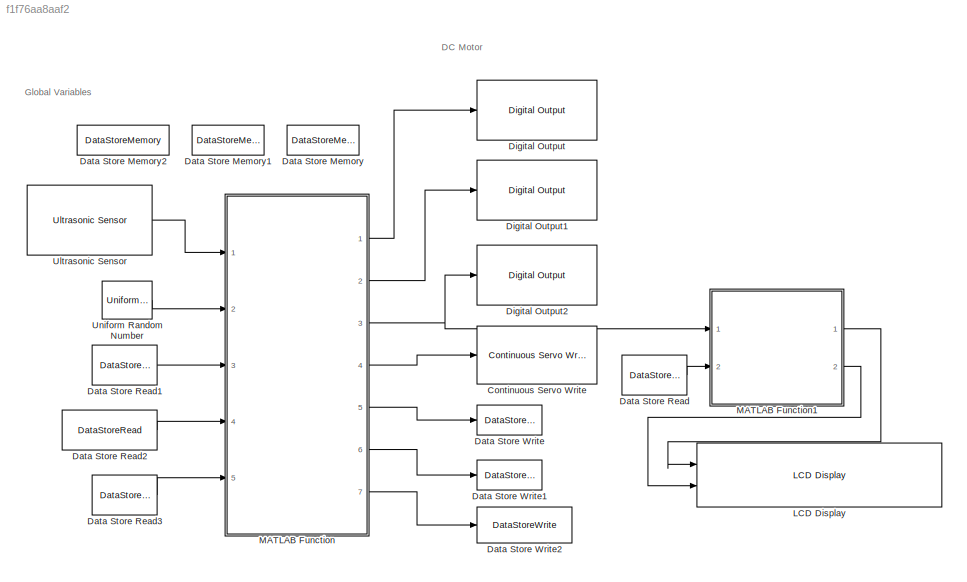
MODEL slx_f1f76aa8aaf2
KIND model
CONFIG AbsTol = auto
CONFIG EnableMultiTasking = on
CONFIG FixedStep = auto
CONFIG MaxStep = auto
CONFIG MinStep = auto
CONFIG RelTol = 1e-3
CONFIG SampleTimeConstraint = Unconstrained
CONFIG Solver = FixedStepAuto
CONFIG SolverName = FixedStepAuto
CONFIG StartTime = 0.0
CONFIG StopTime = inf
BLOCK [Reference] Continuous Servo Write  REF=arduinolib/Continuous Servo Write
  Ports = [1]
  SourceBlock = arduinolib/Continuous Servo Write
  SourceProductBaseCode = ARDUINO
  SourceProductName = Simulink Support Package for Arduino Hardware
  SourceType = Arduino Continuous Servo Write
BLOCK [DataStoreMemory] Data Store Memory
  DataStoreName = Dir_Signal
  ReadBeforeWriteMsg = warning
  ShowAdditionalParam = off
  WriteAfterReadMsg = warning
  WriteAfterWriteMsg = warning
BLOCK [DataStoreMemory] Data Store Memory1
  DataStoreName = Lock
  ReadBeforeWriteMsg = warning
  ShowAdditionalParam = off
  WriteAfterReadMsg = warning
  WriteAfterWriteMsg = warning
BLOCK [DataStoreMemory] Data Store Memory2
  DataStoreName = Lock_random_val
  ReadBeforeWriteMsg = warning
  ShowAdditionalParam = off
  WriteAfterReadMsg = warning
  WriteAfterWriteMsg = warning
BLOCK [DataStoreRead] Data Store Read
  DataStoreName = Dir_Signal
  Ports = [0, 1]
BLOCK [DataStoreRead] Data Store Read1
  DataStoreName = Lock
  Ports = [0, 1]
BLOCK [DataStoreRead] Data Store Read2
  DataStoreName = Lock_random_val
  Ports = [0, 1]
BLOCK [DataStoreRead] Data Store Read3
  DataStoreName = Dir_Signal
  Ports = [0, 1]
BLOCK [DataStoreWrite] Data Store Write
  DataStoreName = Dir_Signal
  Ports = [1]
BLOCK [DataStoreWrite] Data Store Write1
  DataStoreName = Lock
  Ports = [1]
BLOCK [DataStoreWrite] Data Store Write2
  DataStoreName = Lock_random_val
  Ports = [1]
BLOCK [Reference] Digital Output  REF=arduinolib/Digital Output
  Ports = [1]
  SourceBlock = arduinolib/Digital Output
  SourceProductBaseCode = ARDUINO
  SourceProductName = Simulink Support Package for Arduino Hardware
  SourceType = Arduino Digital Output
BLOCK [Reference] Digital Output1  REF=arduinolib/Digital Output
  Ports = [1]
  SourceBlock = arduinolib/Digital Output
  SourceProductBaseCode = ARDUINO
  SourceProductName = Simulink Support Package for Arduino Hardware
  SourceType = Arduino Digital Output
BLOCK [Reference] Digital Output2  REF=arduinolib/Digital Output
  Ports = [1]
  SourceBlock = arduinolib/Digital Output
  SourceProductBaseCode = ARDUINO
  SourceProductName = Simulink Support Package for Arduino Hardware
  SourceType = Arduino Digital Output
BLOCK [Reference] LCD Display  REF=LCDlib/LCD Display
  Ports = [2]
  SourceBlock = LCDlib/LCD Display
  SourceProductName = LCD Library
  SourceType = LiquidCrystalDisplay.block.LCD
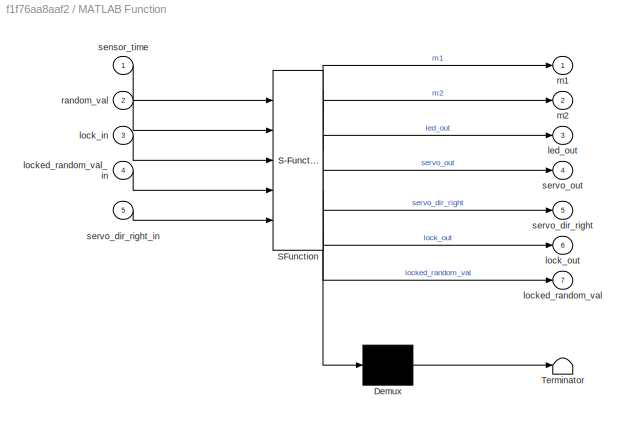
BLOCK [SubSystem] MATLAB Function
  ErrorFcn = Stateflow.Translate.translate
  PermitHierarchicalResolution = ExplicitOnly
  Ports = [5, 7]
  RequestExecContextInheritance = off
  SFBlockType = MATLAB Function
  TreatAsAtomicUnit = on
BLOCK [Demux] MATLAB Function/ Demux 
  Outputs = 1
  Ports = [1, 1]
BLOCK [S-Function] MATLAB Function/ SFunction 
  EnableBusSupport = on
  FunctionName = sf_sfun
  PortCounts = [5 8]
  Ports = [5, 8]
  SFcnIsStateOwnerBlock = off
  SFunctionDeploymentMode = off
  Tag = Stateflow S-Function Obstacle_Avoiding_Robot 2
BLOCK [Terminator] MATLAB Function/ Terminator 
BLOCK [Outport] MATLAB Function/led_out
  IconDisplay = Port number
  Port = 3
BLOCK [Inport] MATLAB Function/lock_in
  IconDisplay = Port number
  Port = 3
BLOCK [Outport] MATLAB Function/lock_out
  IconDisplay = Port number
  Port = 6
BLOCK [Outport] MATLAB Function/locked_random_val
  IconDisplay = Port number
  Port = 7
BLOCK [Inport] MATLAB Function/locked_random_val_in
  IconDisplay = Port number
  Port = 4
BLOCK [Outport] MATLAB Function/m1
  IconDisplay = Port number
BLOCK [Outport] MATLAB Function/m2
  IconDisplay = Port number
  Port = 2
BLOCK [Inport] MATLAB Function/random_val
  IconDisplay = Port number
  Port = 2
BLOCK [Inport] MATLAB Function/sensor_time
  IconDisplay = Port number
BLOCK [Outport] MATLAB Function/servo_dir_right
  IconDisplay = Port number
  Port = 5
BLOCK [Inport] MATLAB Function/servo_dir_right_in
  IconDisplay = Port number
  Port = 5
BLOCK [Outport] MATLAB Function/servo_out
  IconDisplay = Port number
  Port = 4
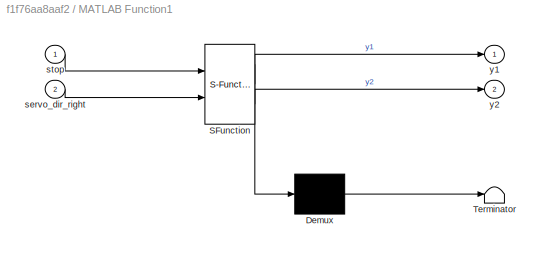
BLOCK [SubSystem] MATLAB Function1
  ErrorFcn = Stateflow.Translate.translate
  PermitHierarchicalResolution = ExplicitOnly
  Ports = [2, 2]
  RequestExecContextInheritance = off
  SFBlockType = MATLAB Function
  TreatAsAtomicUnit = on
BLOCK [Demux] MATLAB Function1/ Demux 
  Outputs = 1
  Ports = [1, 1]
BLOCK [S-Function] MATLAB Function1/ SFunction 
  EnableBusSupport = on
  FunctionName = sf_sfun
  PortCounts = [2 3]
  Ports = [2, 3]
  SFcnIsStateOwnerBlock = off
  SFunctionDeploymentMode = off
  Tag = Stateflow S-Function Obstacle_Avoiding_Robot 1
BLOCK [Terminator] MATLAB Function1/ Terminator 
BLOCK [Inport] MATLAB Function1/servo_dir_right
  IconDisplay = Port number
  Port = 2
BLOCK [Inport] MATLAB Function1/stop
  IconDisplay = Port number
BLOCK [Outport] MATLAB Function1/y1
  IconDisplay = Port number
BLOCK [Outport] MATLAB Function1/y2
  IconDisplay = Port number
  Port = 2
BLOCK [Reference] Ultrasonic Sensor  REF=arduinosensorlib/Ultrasonic Sensor
  Ports = [0, 1]
  SourceBlock = arduinosensorlib/Ultrasonic Sensor
  SourceProductBaseCode = ARDUINO
  SourceProductName = Simulink Support Package for Arduino Hardware
  SourceType = Arduino Ultrasonic Sensor
BLOCK [UniformRandomNumber] Uniform Random Number
  SampleTime = 0.1
ANNOTATION (root): DC Motor
ANNOTATION (root): Global Variables
LINE Data Store Read1:1 -> MATLAB Function:3
LINE Data Store Read2:1 -> MATLAB Function:4
LINE Data Store Read3:1 -> MATLAB Function:5
LINE Data Store Read:1 -> MATLAB Function1:2
LINE MATLAB Function1:1 -> LCD Display:1
LINE MATLAB Function1:2 -> LCD Display:2
LINE MATLAB Function:1 -> Digital Output:1
LINE MATLAB Function:2 -> Digital Output1:1
NET MATLAB Function:3 -> Digital Output2:1, MATLAB Function1:1
LINE MATLAB Function:4 -> Continuous Servo Write:1
LINE MATLAB Function:5 -> Data Store Write:1
LINE MATLAB Function:6 -> Data Store Write1:1
LINE MATLAB Function:7 -> Data Store Write2:1
LINE Ultrasonic Sensor:1 -> MATLAB Function:1
LINE Uniform Random Number:1 -> MATLAB Function:2
note: NET lines group one-source signal fan-out (src -> all destinations, sorted); 1:1 wires keep LINE
CHART MATLAB Function1 states=1 transitions=1
  STATE_LABEL 'eML_blk_kernel()'
  STATE_LABEL 'SCRIPT:\nfunction [y1,y2] = fcn(stop, servo_dir_right)\nif ~stop\n    y1=[[68], [67], [32], [77], [111], [116], [111], [114], [32], [82], [80], [77], [58], [32]];\n    y2=[[51], [48], [48], [32], [32], [32], [32], [32], [32], [32], [32], [32], [32], [32]];\nelse\n    y1=[[65], [76], [69], [82], [84], [33], [33], [32], [32], [32], [32], [32], [32], [32]];\n    if servo_dir_right\n        y2=[[84], [117], [...<+212ch>'
CHART MATLAB Function states=1 transitions=1
  STATE_LABEL 'eML_blk_kernel()'
  STATE_LABEL 'SCRIPT:\nfunction [m1,m2,led_out,servo_out,servo_dir_right, lock_out,locked_random_val] = fcn(sensor_time, random_val, lock_in, locked_random_val_in, servo_dir_right_in)\ndistance=(sensor_time*343)/2;\nif distance < 20\n    m1=0;\n    m2=0;\n    led_out=1;\n    if lock_in==0\n        locked_random_val=random_val;\n        servo_dir_right=servo_dir_right_in;\n        servo_out=[0];\n    else\n        locked_ra...<+491ch>'
